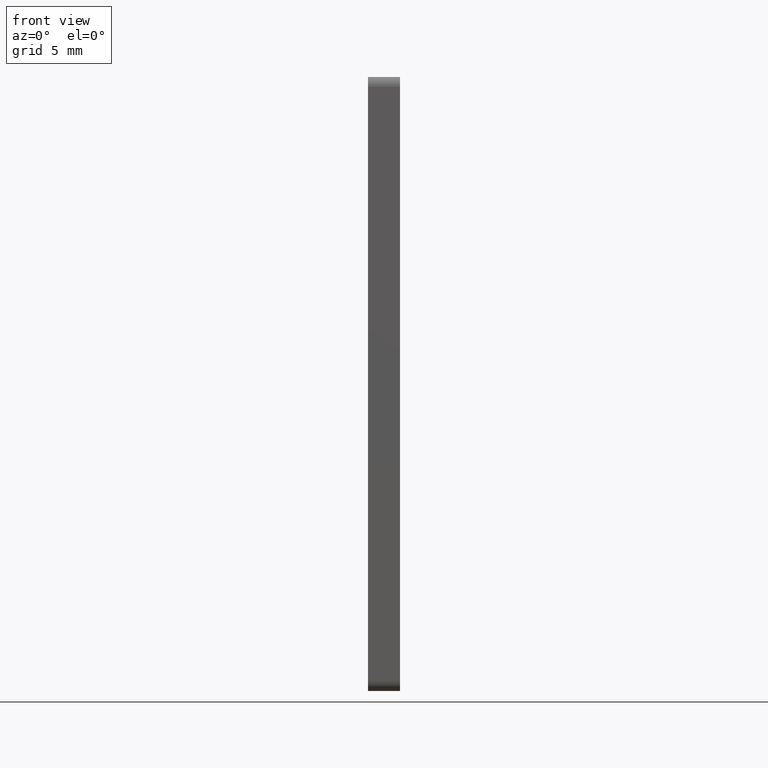
[diagram: clean part render]
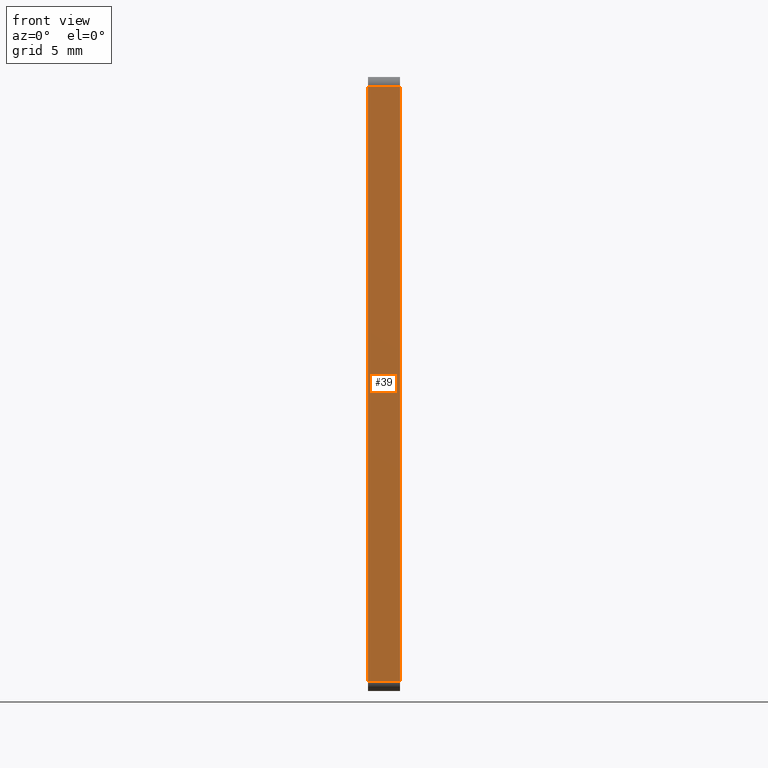
[diagram: same view with one face highlighted and labeled with its STEP entity id]
A machine part, front view. The second image highlights one B-rep face of the part: STEP entity #39.
In plain terms, the highlighted planar face has unit normal (-0, 1, 0).
Its self-contained STEP definition (entity closure, byte-faithful):
#10 = CARTESIAN_POINT ( 'NONE',  ( 1.620000000000000995, 0.000000000000000000, -0.5000000000000035527 ) ) ;
#39 = ADVANCED_FACE ( 'NONE', ( #12851 ), #251, .F. ) ;
#251 = PLANE ( 'NONE',  #11419 ) ;
#2286 = DIRECTION ( 'NONE',  ( -1.000000000000000000, -0.000000000000000000, -0.000000000000000000 ) ) ;
#2365 = EDGE_CURVE ( 'NONE', #15338, #12168, #3046, .T. ) ;
#2520 = CARTESIAN_POINT ( 'NONE',  ( 1.620000000000000995, 0.000000000000000000, -0.5000000000000035527 ) ) ;
#2535 = CARTESIAN_POINT ( 'NONE',  ( 1.620000000000000995, 0.000000000000000000, -0.5000000000000035527 ) ) ;
#3046 = LINE ( 'NONE', #4768, #7716 ) ;
#3186 = ORIENTED_EDGE ( 'NONE', *, *, #2365, .F. ) ;
#3624 = CARTESIAN_POINT ( 'NONE',  ( 0.000000000000000000, 0.000000000000000000, -0.5000000000000035527 ) ) ;
#3924 = VERTEX_POINT ( 'NONE', #4360 ) ;
#4258 = VECTOR ( 'NONE', #9627, 1000.000000000000000 ) ;
#4360 = CARTESIAN_POINT ( 'NONE',  ( 0.000000000000000000, 0.000000000000000000, -0.5000000000000035527 ) ) ;
#4768 = CARTESIAN_POINT ( 'NONE',  ( 1.620000000000000995, 0.000000000000000000, -30.49999999999999645 ) ) ;
#4965 = DIRECTION ( 'NONE',  ( -0.000000000000000000, 1.000000000000000000, 0.000000000000000000 ) ) ;
#6448 = ORIENTED_EDGE ( 'NONE', *, *, #13764, .T. ) ;
#6501 = LINE ( 'NONE', #3624, #4258 ) ;
#6815 = CARTESIAN_POINT ( 'NONE',  ( 1.620000000000000995, 0.000000000000000000, -0.5000000000000035527 ) ) ;
#7716 = VECTOR ( 'NONE', #2286, 1000.000000000000000 ) ;
#8163 = CARTESIAN_POINT ( 'NONE',  ( 1.620000000000000995, 0.000000000000000000, -30.49999999999999645 ) ) ;
#9078 = ORIENTED_EDGE ( 'NONE', *, *, #10891, .T. ) ;
#9368 = EDGE_LOOP ( 'NONE', ( #9078, #3186, #11739, #6448 ) ) ;
#9604 = DIRECTION ( 'NONE',  ( -1.000000000000000000, -0.000000000000000000, -0.000000000000000000 ) ) ;
#9627 = DIRECTION ( 'NONE',  ( 0.000000000000000000, 0.000000000000000000, -1.000000000000000000 ) ) ;
#9662 = LINE ( 'NONE', #10, #14860 ) ;
#10891 = EDGE_CURVE ( 'NONE', #3924, #12168, #6501, .T. ) ;
#10975 = VECTOR ( 'NONE', #14458, 1000.000000000000000 ) ;
#11419 = AXIS2_PLACEMENT_3D ( 'NONE', #2535, #4965, #13318 ) ;
#11739 = ORIENTED_EDGE ( 'NONE', *, *, #13492, .F. ) ;
#12168 = VERTEX_POINT ( 'NONE', #14505 ) ;
#12685 = VERTEX_POINT ( 'NONE', #6815 ) ;
#12851 = FACE_OUTER_BOUND ( 'NONE', #9368, .T. ) ;
#13318 = DIRECTION ( 'NONE',  ( 0.000000000000000000, -0.000000000000000000, 1.000000000000000000 ) ) ;
#13492 = EDGE_CURVE ( 'NONE', #12685, #15338, #14134, .T. ) ;
#13764 = EDGE_CURVE ( 'NONE', #12685, #3924, #9662, .T. ) ;
#14134 = LINE ( 'NONE', #2520, #10975 ) ;
#14458 = DIRECTION ( 'NONE',  ( 0.000000000000000000, 0.000000000000000000, -1.000000000000000000 ) ) ;
#14505 = CARTESIAN_POINT ( 'NONE',  ( 0.000000000000000000, 0.000000000000000000, -30.49999999999999645 ) ) ;
#14860 = VECTOR ( 'NONE', #9604, 1000.000000000000000 ) ;
#15338 = VERTEX_POINT ( 'NONE', #8163 ) ;